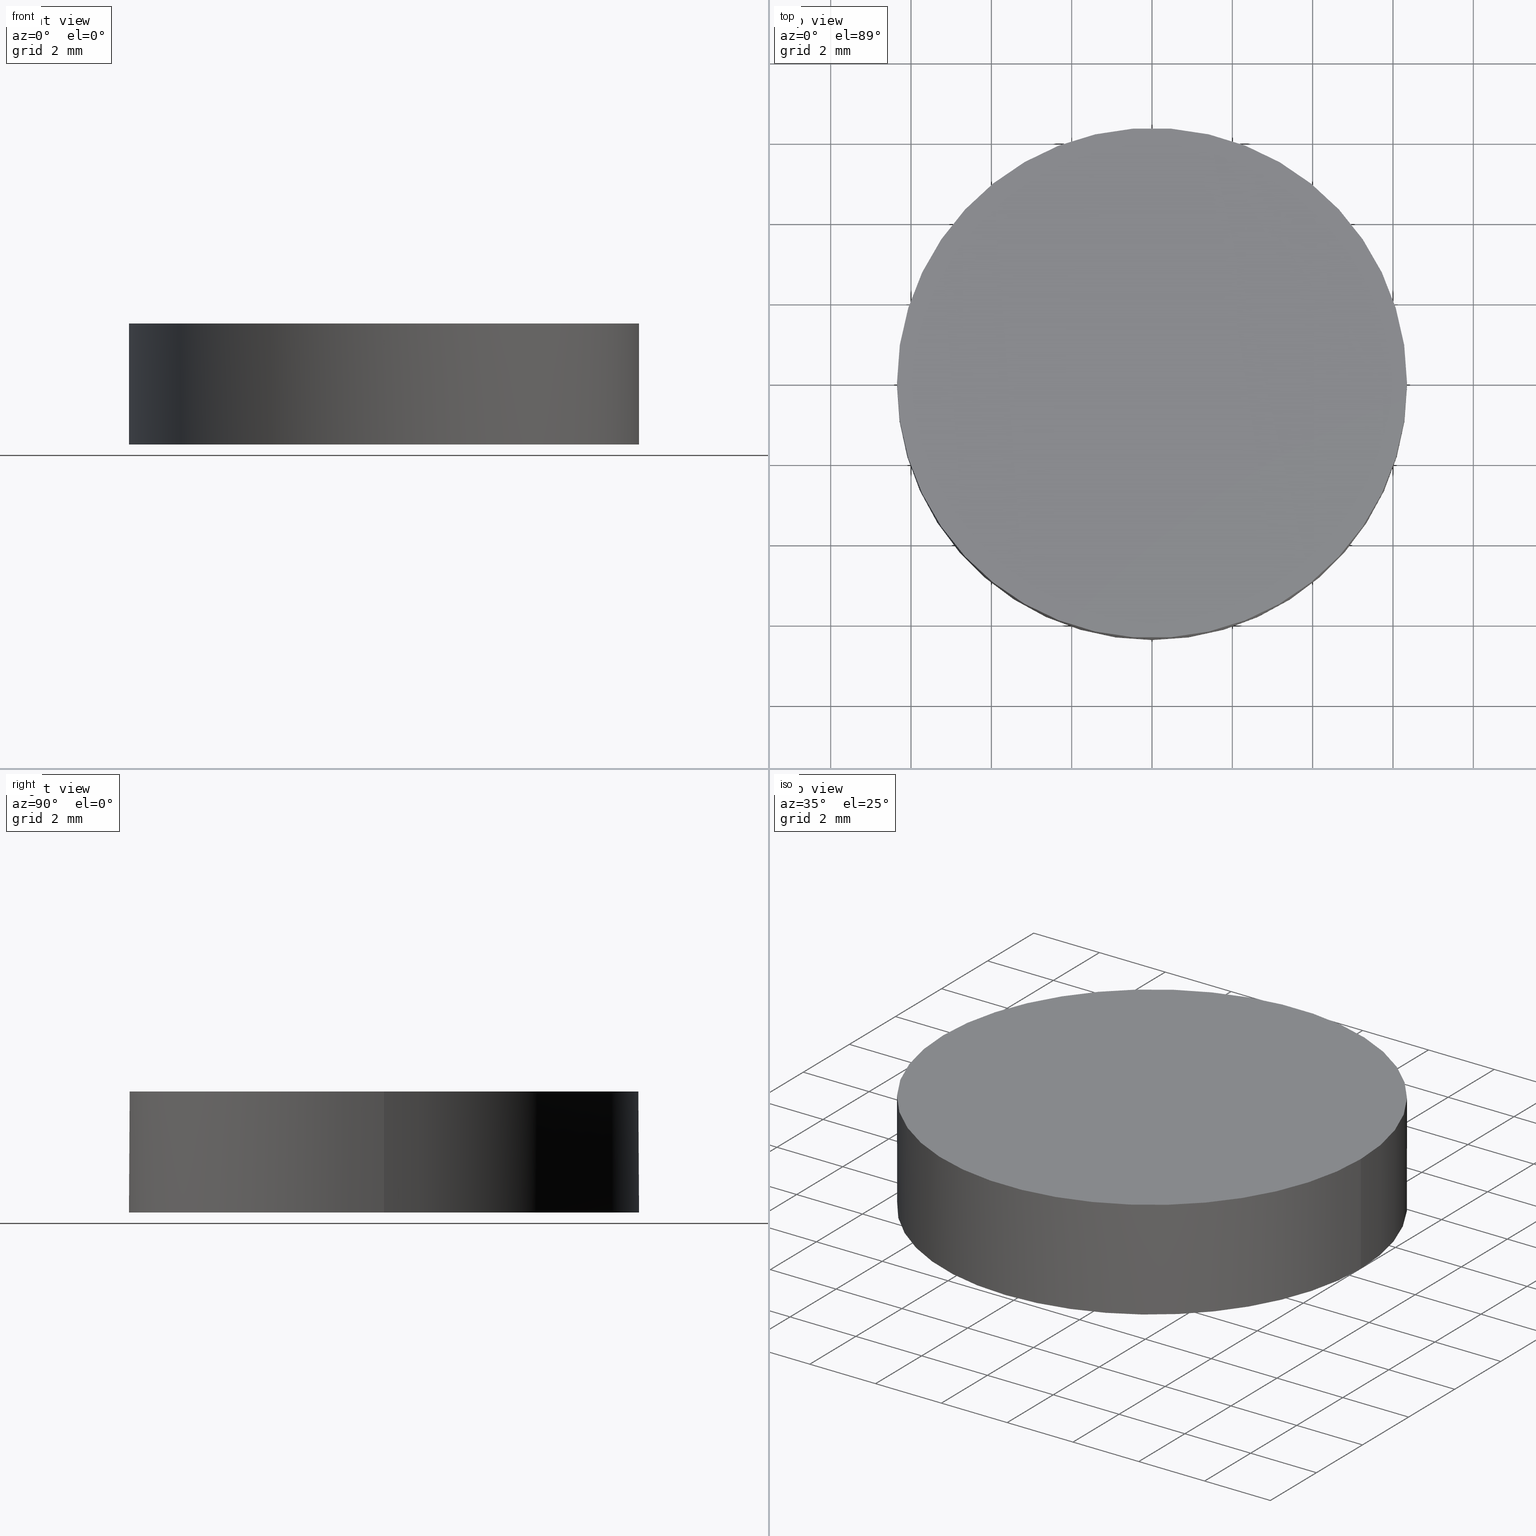
[diagram: canonical four-view strip — front | top / right | iso, engineering-drawing reading convention]
A machine part, canonical four-view strip (front | top / right | iso — engineering-drawing reading convention). The complete STEP part file that produces these views, byte-faithful:
ISO-10303-21;
HEADER;
FILE_DESCRIPTION (( 'STEP AP203' ),
    '1' );
FILE_NAME ('112-1123E UVFS pl-cv 12.7 F-200.STEP',
    '2019-01-16T13:51:20',
    ( '' ),
    ( '' ),
    'SwSTEP 2.0',
    'SolidWorks 2017',
    '' );
FILE_SCHEMA (( 'CONFIG_CONTROL_DESIGN' ));
ENDSEC;

DATA;
#1 = APPROVAL_DATE_TIME ( #61, #102 ) ;
#2 = CARTESIAN_POINT ( 'NONE',  ( 2.126488737841746500, -6.426084769830244300, -0.2171079789074070200 ) ) ;
#3 = DIRECTION ( 'NONE',  ( -0.0000000000000000000, -0.0000000000000000000, -1.000000000000000000 ) ) ;
#4 = DATE_AND_TIME ( #39, #56 ) ;
#5 = FACE_OUTER_BOUND ( 'NONE', #226, .T. ) ;
#6 = MECHANICAL_CONTEXT ( 'NONE', #26, 'mechanical' ) ;
#7 = AXIS2_PLACEMENT_3D ( 'NONE', #230, #30, #153 ) ;
#8 = PERSON_AND_ORGANIZATION_ROLE ( 'creator' ) ;
#9 = AXIS2_PLACEMENT_3D ( 'NONE', #12, #66, #67 ) ;
#10 = PERSON_AND_ORGANIZATION ( #115, #116 ) ;
#11 = CC_DESIGN_APPROVAL ( #196, ( #167 ) ) ;
#12 = CARTESIAN_POINT ( 'NONE',  ( 2.498001805406600200E-016, 1.221245327087670000E-015, 2.799999999999999800 ) ) ;
#13 = PERSON_AND_ORGANIZATION ( #115, #116 ) ;
#14 = ORIENTED_EDGE ( 'NONE', *, *, #27, .F. ) ;
#15 = EDGE_CURVE ( 'NONE', #176, #182, #97, .T. ) ;
#16 = EDGE_LOOP ( 'NONE', ( #212, #218, #48, #180, #109 ) ) ;
#17 = ADVANCED_FACE ( 'NONE', ( #128 ), #71, .T. ) ;
#18 = CC_DESIGN_PERSON_AND_ORGANIZATION_ASSIGNMENT ( #10, #183, ( #204 ) ) ;
#19 = CARTESIAN_POINT ( 'NONE',  ( -5.984795992119984500E-014, -6.426084769830243500, -0.2171079789074099900 ) ) ;
#20 = APPROVAL_STATUS ( 'not_yet_approved' ) ;
#21 = CC_DESIGN_DATE_AND_TIME_ASSIGNMENT ( #95, #146, ( #84 ) ) ;
#22 = DATE_TIME_ROLE ( 'creation_date' ) ;
#23 = LINE ( 'NONE', #154, #81 ) ;
#24 = SECURITY_CLASSIFICATION_LEVEL ( 'unclassified' ) ;
#25 = EDGE_CURVE ( 'NONE', #145, #36, #136, .T. ) ;
#26 = APPLICATION_CONTEXT ( 'configuration controlled 3d designs of mechanical parts and assemblies' ) ;
#27 = EDGE_CURVE ( 'NONE', #162, #176, #229, .T. ) ;
#28 = ADVANCED_FACE ( 'NONE', ( #73 ), #171, .T. ) ;
#29 = DIRECTION ( 'NONE',  ( 1.000000000000000000, 0.0000000000000000000, 0.0000000000000000000 ) ) ;
#30 = DIRECTION ( 'NONE',  ( 0.0000000000000000000, 0.0000000000000000000, 1.000000000000000000 ) ) ;
#31 = ORIENTED_EDGE ( 'NONE', *, *, #25, .T. ) ;
#32 = CARTESIAN_POINT ( 'NONE',  ( 2.498001805406600200E-016, 1.221245327087670000E-015, -0.2119915998235260000 ) ) ;
#33 = EDGE_CURVE ( 'NONE', #162, #145, #112, .T. ) ;
#34 = DIRECTION ( 'NONE',  ( 0.0000000000000000000, 0.0000000000000000000, 1.000000000000000000 ) ) ;
#35 = CARTESIAN_POINT ( 'NONE',  ( -3.640864328147872700E-014, 6.350000000000079600, -0.2119915998235293900 ) ) ;
#36 = VERTEX_POINT ( 'NONE', #69 ) ;
#37 = CARTESIAN_POINT ( 'NONE',  ( 4.264740826300936800, 2.145289535013028500, 0.0008841159551957629700 ) ) ;
#38 = AXIS2_PLACEMENT_3D ( 'NONE', #76, #203, #114 ) ;
#39 = CALENDAR_DATE ( 2019, 16, 1 ) ;
#40 = CARTESIAN_POINT ( 'NONE',  ( 6.349999999999999600, 1.221245327087670000E-015, 2.799999999999999800 ) ) ;
#41 = CARTESIAN_POINT ( 'NONE',  ( 2.498001805406600200E-016, 1.221245327087670000E-015, -0.2119915998235260000 ) ) ;
#42 =( NAMED_UNIT ( * ) PLANE_ANGLE_UNIT ( ) SI_UNIT ( $, .RADIAN. ) );
#43 = CIRCLE ( 'NONE', #92, 6.349999999999999600 ) ;
#44 = PERSON_AND_ORGANIZATION_ROLE ( 'design_supplier' ) ;
#45 =( LENGTH_UNIT ( ) NAMED_UNIT ( * ) SI_UNIT ( .MILLI., .METRE. ) );
#46 = DIRECTION ( 'NONE',  ( 0.0000000000000000000, 0.0000000000000000000, 1.000000000000000000 ) ) ;
#47 = CALENDAR_DATE ( 2019, 16, 1 ) ;
#48 = ORIENTED_EDGE ( 'NONE', *, *, #165, .T. ) ;
#49 = CC_DESIGN_PERSON_AND_ORGANIZATION_ASSIGNMENT ( #93, #8, ( #167 ) ) ;
#50 = PERSON_AND_ORGANIZATION ( #115, #116 ) ;
#51 = CARTESIAN_POINT ( 'NONE',  ( -4.251779203210003500, 6.426084769830233700, -0.2884857764570014600 ) ) ;
#52 = MANIFOLD_SOLID_BREP ( 'Imported1', #193 ) ;
#53 = ORIENTED_EDGE ( 'NONE', *, *, #201, .F. ) ;
#54 = AXIS2_PLACEMENT_3D ( 'NONE', #41, #113, #184 ) ;
#55 = CARTESIAN_POINT ( 'NONE',  ( -5.984795992119983200E-014, -2.145289535013039200, 0.07247950996610000300 ) ) ;
#56 = LOCAL_TIME ( 15, 51, 20.00000000000000000, #225 ) ;
#57 = CARTESIAN_POINT ( 'NONE',  ( 4.251779203209928900, 6.426084769830233700, -0.2884857764570011300 ) ) ;
#58 = LOCAL_TIME ( 15, 51, 20.00000000000000000, #222 ) ;
#59 =( BOUNDED_SURFACE ( )  B_SPLINE_SURFACE ( 3, 3, ( 
 ( #210, #111, #57, #232 ),
 ( #72, #122, #37, #173 ),
 ( #87, #192, #124, #142 ),
 ( #123, #2, #157, #139 ) ),
 .UNSPECIFIED., .F., .F., .F. ) 
 B_SPLINE_SURFACE_WITH_KNOTS ( ( 4, 4 ),
 ( 4, 4 ),
 ( 0.0000000000000000000, 1.000000000000000000 ),
 ( 0.0000000000000000000, 1.000000000000000000 ),
 .UNSPECIFIED. ) 
 GEOMETRIC_REPRESENTATION_ITEM ( )  RATIONAL_B_SPLINE_SURFACE ( (
 ( 1.000000000000000000, 0.9996243345654658400, 0.9996243345654658400, 1.000000000000000000),
 ( 0.9984797956873757700, 0.9981047013410553300, 0.9981047013410553300, 0.9984797956873757700),
 ( 0.9984797956873757700, 0.9981047013410553300, 0.9981047013410553300, 0.9984797956873757700),
 ( 1.000000000000000000, 0.9996243345654658400, 0.9996243345654658400, 1.000000000000000000) ) ) 
 REPRESENTATION_ITEM ( '' )  SURFACE ( )  );
#60 = CC_DESIGN_PERSON_AND_ORGANIZATION_ASSIGNMENT ( #50, #44, ( #167 ) ) ;
#61 = DATE_AND_TIME ( #185, #140 ) ;
#62 =( NAMED_UNIT ( * ) SI_UNIT ( $, .STERADIAN. ) SOLID_ANGLE_UNIT ( ) );
#63 = CALENDAR_DATE ( 2019, 16, 1 ) ;
#64 = ORIENTED_EDGE ( 'NONE', *, *, #33, .F. ) ;
#65 = AXIS2_PLACEMENT_3D ( 'NONE', #209, #137, #29 ) ;
#66 = DIRECTION ( 'NONE',  ( -0.0000000000000000000, -0.0000000000000000000, -1.000000000000000000 ) ) ;
#67 = DIRECTION ( 'NONE',  ( 1.000000000000000000, 0.0000000000000000000, 0.0000000000000000000 ) ) ;
#68 = ORIENTED_EDGE ( 'NONE', *, *, #25, .F. ) ;
#69 = CARTESIAN_POINT ( 'NONE',  ( -3.640864328147872700E-014, -6.350000000000084900, -0.2119915998235293900 ) ) ;
#70 = APPROVAL_PERSON_ORGANIZATION ( #187, #196, #163 ) ;
#71 = CYLINDRICAL_SURFACE ( 'NONE', #65, 6.349999999999999600 ) ;
#72 = CARTESIAN_POINT ( 'NONE',  ( -3.649639163004573800E-014, 2.145289535013029000, 0.07247950996610258400 ) ) ;
#73 = FACE_OUTER_BOUND ( 'NONE', #78, .T. ) ;
#74 = AXIS2_PLACEMENT_3D ( 'NONE', #168, #207, #121 ) ;
#75 = CARTESIAN_POINT ( 'NONE',  ( -6.392905855018496700, 2.145289535013029000, -0.1422259843222124800 ) ) ;
#76 = CARTESIAN_POINT ( 'NONE',  ( 0.0000000000000000000, 0.0000000000000000000, 0.0000000000000000000 ) ) ;
#77 = DIRECTION ( 'NONE',  ( 1.000000000000000000, 0.0000000000000000000, 0.0000000000000000000 ) ) ;
#78 = EDGE_LOOP ( 'NONE', ( #216, #83 ) ) ;
#79 = APPROVAL_STATUS ( 'not_yet_approved' ) ;
#80 = APPROVAL_PERSON_ORGANIZATION ( #90, #102, #99 ) ;
#81 = VECTOR ( 'NONE', #198, 1000.000000000000000 ) ;
#82 = PRODUCT_DEFINITION_SHAPE ( 'NONE', 'NONE',  #174 ) ;
#83 = ORIENTED_EDGE ( 'NONE', *, *, #228, .F. ) ;
#84 = SECURITY_CLASSIFICATION ( '', '', #24 ) ;
#85 = CALENDAR_DATE ( 2019, 16, 1 ) ;
#86 = CYLINDRICAL_SURFACE ( 'NONE', #224, 6.349999999999999600 ) ;
#87 = CARTESIAN_POINT ( 'NONE',  ( -3.649639163004573800E-014, -2.145289535013039200, 0.07247950996610241800 ) ) ;
#88 = PRODUCT_RELATED_PRODUCT_CATEGORY ( 'detail', '', ( #204 ) ) ;
#89 = ADVANCED_FACE ( 'NONE', ( #5 ), #126, .F. ) ;
#90 = PERSON_AND_ORGANIZATION ( #115, #116 ) ;
#91 = FACE_OUTER_BOUND ( 'NONE', #166, .T. ) ;
#92 = AXIS2_PLACEMENT_3D ( 'NONE', #98, #3, #219 ) ;
#93 = PERSON_AND_ORGANIZATION ( #115, #116 ) ;
#94 = CARTESIAN_POINT ( 'NONE',  ( -2.132971375864607400, 2.145289535013028500, 0.07247950996609892100 ) ) ;
#95 = DATE_AND_TIME ( #85, #202 ) ;
#96 = PERSON_AND_ORGANIZATION_ROLE ( 'classification_officer' ) ;
#97 = CIRCLE ( 'NONE', #9, 6.349999999999999600 ) ;
#98 = CARTESIAN_POINT ( 'NONE',  ( 2.498001805406600200E-016, 1.221245327087670000E-015, 2.799999999999999800 ) ) ;
#99 = APPROVAL_ROLE ( '' ) ;
#100 = CC_DESIGN_PERSON_AND_ORGANIZATION_ASSIGNMENT ( #206, #96, ( #84 ) ) ;
#101 = ORIENTED_EDGE ( 'NONE', *, *, #33, .T. ) ;
#102 = APPROVAL ( #20, 'UNSPECIFIED' ) ;
#103 = ADVANCED_FACE ( 'NONE', ( #130 ), #86, .T. ) ;
#104 = UNCERTAINTY_MEASURE_WITH_UNIT (LENGTH_MEASURE( 1.000000000000000100E-005 ), #45, 'distance_accuracy_value', 'NONE');
#105 = CARTESIAN_POINT ( 'NONE',  ( -6.373476201606024500, 6.426084769830232800, -0.4311609290421902800 ) ) ;
#106 = CARTESIAN_POINT ( 'NONE',  ( -5.984795992119984500E-014, 6.426084769830232800, -0.2171079789074099900 ) ) ;
#107 = CARTESIAN_POINT ( 'NONE',  ( -2.126488737841831300, 6.426084769830233700, -0.2171079789074112100 ) ) ;
#108 = APPROVAL_DATE_TIME ( #170, #186 ) ;
#109 = ORIENTED_EDGE ( 'NONE', *, *, #15, .T. ) ;
#110 = CARTESIAN_POINT ( 'NONE',  ( -4.264740826301011400, 2.145289535013028500, 0.0008841159551954106000 ) ) ;
#111 = CARTESIAN_POINT ( 'NONE',  ( 2.126488737841746500, 6.426084769830233700, -0.2171079789074070200 ) ) ;
#112 = CIRCLE ( 'NONE', #7, 6.349999999999999600 ) ;
#113 = DIRECTION ( 'NONE',  ( 0.0000000000000000000, 0.0000000000000000000, 1.000000000000000000 ) ) ;
#114 = DIRECTION ( 'NONE',  ( 1.000000000000000000, 0.0000000000000000000, 0.0000000000000000000 ) ) ;
#115 = PERSON ( 'UNSPECIFIED', 'UNSPECIFIED', 'UNSPECIFIED', ('UNSPECIFIED'), ('UNSPECIFIED'), ('UNSPECIFIED') ) ;
#116 = ORGANIZATION ( 'UNSPECIFIED', 'UNSPECIFIED', '' ) ;
#117 = CIRCLE ( 'NONE', #118, 6.349999999999999600 ) ;
#118 = AXIS2_PLACEMENT_3D ( 'NONE', #32, #158, #177 ) ;
#119 = ORIENTED_EDGE ( 'NONE', *, *, #165, .F. ) ;
#120 = DIRECTION ( 'NONE',  ( 0.0000000000000000000, 0.0000000000000000000, 1.000000000000000000 ) ) ;
#121 = DIRECTION ( 'NONE',  ( 0.0000000000000000000, 1.000000000000000000, -2.915195422290611700E-016 ) ) ;
#122 = CARTESIAN_POINT ( 'NONE',  ( 2.132971375864522600, 2.145289535013028500, 0.07247950996610323700 ) ) ;
#123 = CARTESIAN_POINT ( 'NONE',  ( -3.640706507617139100E-014, -6.426084769830243500, -0.2171079789074076300 ) ) ;
#124 = CARTESIAN_POINT ( 'NONE',  ( 4.264740826300936800, -2.145289535013038800, 0.0008841159551956004500 ) ) ;
#125 = EDGE_CURVE ( 'NONE', #200, #182, #23, .T. ) ;
#126 =( BOUNDED_SURFACE ( )  B_SPLINE_SURFACE ( 3, 3, ( 
 ( #105, #51, #107, #106 ),
 ( #75, #110, #94, #231 ),
 ( #156, #141, #213, #55 ),
 ( #181, #175, #194, #19 ) ),
 .UNSPECIFIED., .F., .F., .F. ) 
 B_SPLINE_SURFACE_WITH_KNOTS ( ( 4, 4 ),
 ( 4, 4 ),
 ( 0.0000000000000000000, 1.000000000000000000 ),
 ( 0.0000000000000000000, 1.000000000000000000 ),
 .UNSPECIFIED. ) 
 GEOMETRIC_REPRESENTATION_ITEM ( )  RATIONAL_B_SPLINE_SURFACE ( (
 ( 1.000000000000000000, 0.9996243345654658400, 0.9996243345654658400, 1.000000000000000000),
 ( 0.9984797956873757700, 0.9981047013410553300, 0.9981047013410553300, 0.9984797956873757700),
 ( 0.9984797956873757700, 0.9981047013410553300, 0.9981047013410553300, 0.9984797956873757700),
 ( 1.000000000000000000, 0.9996243345654658400, 0.9996243345654658400, 1.000000000000000000) ) ) 
 REPRESENTATION_ITEM ( '' )  SURFACE ( )  );
#127 = ADVANCED_FACE ( 'NONE', ( #91 ), #59, .F. ) ;
#128 = FACE_OUTER_BOUND ( 'NONE', #16, .T. ) ;
#129 = APPROVAL_ROLE ( '' ) ;
#130 = FACE_OUTER_BOUND ( 'NONE', #155, .T. ) ;
#131 = APPLICATION_PROTOCOL_DEFINITION ( 'international standard', 'config_control_design', 1994, #26 ) ;
#132 = CC_DESIGN_SECURITY_CLASSIFICATION ( #84, ( #167 ) ) ;
#133 = COORDINATED_UNIVERSAL_TIME_OFFSET ( 2, 0, .AHEAD. ) ;
#134 = VECTOR ( 'NONE', #227, 1000.000000000000000 ) ;
#135 = COORDINATED_UNIVERSAL_TIME_OFFSET ( 2, 0, .AHEAD. ) ;
#136 = CIRCLE ( 'NONE', #74, 95.20999999999999400 ) ;
#137 = DIRECTION ( 'NONE',  ( 0.0000000000000000000, 0.0000000000000000000, 1.000000000000000000 ) ) ;
#138 = APPROVAL_DATE_TIME ( #179, #196 ) ;
#139 = CARTESIAN_POINT ( 'NONE',  ( 6.373476201605961400, -6.426084769830243500, -0.4311609290421896100 ) ) ;
#140 = LOCAL_TIME ( 15, 51, 20.00000000000000000, #135 ) ;
#141 = CARTESIAN_POINT ( 'NONE',  ( -4.264740826301011400, -2.145289535013038800, 0.0008841159551952479700 ) ) ;
#142 = CARTESIAN_POINT ( 'NONE',  ( 6.392905855018431000, -2.145289535013039200, -0.1422259843222119200 ) ) ;
#143 = CARTESIAN_POINT ( 'NONE',  ( 2.498001805406600200E-016, 1.221245327087670000E-015, -0.2119915998235260000 ) ) ;
#144 = PERSON_AND_ORGANIZATION_ROLE ( 'creator' ) ;
#145 = VERTEX_POINT ( 'NONE', #35 ) ;
#146 = DATE_TIME_ROLE ( 'classification_date' ) ;
#147 = APPLICATION_CONTEXT ( 'configuration controlled 3d designs of mechanical parts and assemblies' ) ;
#148 = CC_DESIGN_DATE_AND_TIME_ASSIGNMENT ( #4, #22, ( #174 ) ) ;
#149 = COORDINATED_UNIVERSAL_TIME_OFFSET ( 2, 0, .AHEAD. ) ;
#150 = ORIENTED_EDGE ( 'NONE', *, *, #214, .F. ) ;
#151 = CARTESIAN_POINT ( 'NONE',  ( 6.349999999999999600, 1.221245327087670000E-015, -0.2119915998235260000 ) ) ;
#152 = PERSON_AND_ORGANIZATION ( #115, #116 ) ;
#153 = DIRECTION ( 'NONE',  ( 1.000000000000000000, 0.0000000000000000000, 0.0000000000000000000 ) ) ;
#154 = CARTESIAN_POINT ( 'NONE',  ( -6.349999999999999600, 1.998896044546239400E-015, -0.2119915998235260000 ) ) ;
#155 = EDGE_LOOP ( 'NONE', ( #101, #223, #161, #220, #14 ) ) ;
#156 = CARTESIAN_POINT ( 'NONE',  ( -6.392905855018496700, -2.145289535013039200, -0.1422259843222126500 ) ) ;
#157 = CARTESIAN_POINT ( 'NONE',  ( 4.251779203209928900, -6.426084769830244300, -0.2884857764570011300 ) ) ;
#158 = DIRECTION ( 'NONE',  ( 0.0000000000000000000, 0.0000000000000000000, 1.000000000000000000 ) ) ;
#159 = CC_DESIGN_APPROVAL ( #102, ( #174 ) ) ;
#160 = SHAPE_DEFINITION_REPRESENTATION ( #82, #169 ) ;
#161 = ORIENTED_EDGE ( 'NONE', *, *, #125, .T. ) ;
#162 = VERTEX_POINT ( 'NONE', #215 ) ;
#163 = APPROVAL_ROLE ( '' ) ;
#164 = CARTESIAN_POINT ( 'NONE',  ( 2.498001805406600200E-016, 1.221245327087670000E-015, -0.2119915998235260000 ) ) ;
#165 = EDGE_CURVE ( 'NONE', #36, #162, #117, .T. ) ;
#166 = EDGE_LOOP ( 'NONE', ( #68, #64, #119 ) ) ;
#167 = PRODUCT_DEFINITION_FORMATION_WITH_SPECIFIED_SOURCE ( 'ANY', '', #204, .NOT_KNOWN. ) ;
#168 = CARTESIAN_POINT ( 'NONE',  ( -7.105427357601000300E-015, -7.105427357601000300E-015, -95.20999999999999400 ) ) ;
#169 = ADVANCED_BREP_SHAPE_REPRESENTATION ( '112-1123E UVFS pl-cv 12.7 F-200', ( #52, #38 ), #178 ) ;
#170 = DATE_AND_TIME ( #63, #58 ) ;
#171 = PLANE ( 'NONE',  #235 ) ;
#172 = CARTESIAN_POINT ( 'NONE',  ( -6.349999999999999600, 1.998896044546239400E-015, 2.799999999999999800 ) ) ;
#173 = CARTESIAN_POINT ( 'NONE',  ( 6.392905855018431000, 2.145289535013029000, -0.1422259843222117600 ) ) ;
#174 = PRODUCT_DEFINITION ( 'UNKNOWN', '', #167, #190 ) ;
#175 = CARTESIAN_POINT ( 'NONE',  ( -4.251779203210003500, -6.426084769830244300, -0.2884857764570014600 ) ) ;
#176 = VERTEX_POINT ( 'NONE', #40 ) ;
#177 = DIRECTION ( 'NONE',  ( 1.000000000000000000, 0.0000000000000000000, 0.0000000000000000000 ) ) ;
#178 =( GEOMETRIC_REPRESENTATION_CONTEXT ( 3 ) GLOBAL_UNCERTAINTY_ASSIGNED_CONTEXT ( ( #104 ) ) GLOBAL_UNIT_ASSIGNED_CONTEXT ( ( #45, #42, #62 ) ) REPRESENTATION_CONTEXT ( 'NONE', 'WORKASPACE' ) );
#179 = DATE_AND_TIME ( #47, #211 ) ;
#180 = ORIENTED_EDGE ( 'NONE', *, *, #27, .T. ) ;
#181 = CARTESIAN_POINT ( 'NONE',  ( -6.373476201606024500, -6.426084769830243500, -0.4311609290421902800 ) ) ;
#182 = VERTEX_POINT ( 'NONE', #172 ) ;
#183 = PERSON_AND_ORGANIZATION_ROLE ( 'design_owner' ) ;
#184 = DIRECTION ( 'NONE',  ( 1.000000000000000000, 0.0000000000000000000, 0.0000000000000000000 ) ) ;
#185 = CALENDAR_DATE ( 2019, 16, 1 ) ;
#186 = APPROVAL ( #79, 'UNSPECIFIED' ) ;
#187 = PERSON_AND_ORGANIZATION ( #115, #116 ) ;
#188 = CC_DESIGN_PERSON_AND_ORGANIZATION_ASSIGNMENT ( #13, #144, ( #174 ) ) ;
#189 = CIRCLE ( 'NONE', #54, 6.349999999999999600 ) ;
#190 = DESIGN_CONTEXT ( 'detailed design', #147, 'design' ) ;
#191 = CARTESIAN_POINT ( 'NONE',  ( 0.0000000000000000000, 13.15799999999999900, 2.799999999999999800 ) ) ;
#192 = CARTESIAN_POINT ( 'NONE',  ( 2.132971375864522600, -2.145289535013038800, 0.07247950996610307000 ) ) ;
#193 = CLOSED_SHELL ( 'NONE', ( #89, #103, #127, #17, #28 ) ) ;
#194 = CARTESIAN_POINT ( 'NONE',  ( -2.126488737841831300, -6.426084769830244300, -0.2171079789074112100 ) ) ;
#195 = CARTESIAN_POINT ( 'NONE',  ( -6.349999999999999600, 1.998896044546239400E-015, -0.2119915998235260000 ) ) ;
#196 = APPROVAL ( #199, 'UNSPECIFIED' ) ;
#197 = APPROVAL_PERSON_ORGANIZATION ( #152, #186, #129 ) ;
#198 = DIRECTION ( 'NONE',  ( 0.0000000000000000000, 0.0000000000000000000, 1.000000000000000000 ) ) ;
#199 = APPROVAL_STATUS ( 'not_yet_approved' ) ;
#200 = VERTEX_POINT ( 'NONE', #195 ) ;
#201 = EDGE_CURVE ( 'NONE', #200, #36, #189, .T. ) ;
#202 = LOCAL_TIME ( 15, 51, 20.00000000000000000, #133 ) ;
#203 = DIRECTION ( 'NONE',  ( 0.0000000000000000000, 0.0000000000000000000, 1.000000000000000000 ) ) ;
#204 = PRODUCT ( '112-1123E UVFS pl-cv 12.7 F-200', '112-1123E UVFS pl-cv 12.7 F-200', '', ( #6 ) ) ;
#205 = AXIS2_PLACEMENT_3D ( 'NONE', #164, #46, #77 ) ;
#206 = PERSON_AND_ORGANIZATION ( #115, #116 ) ;
#207 = DIRECTION ( 'NONE',  ( 1.000000000000000000, 9.414397848674539600E-032, 3.084613711104210100E-016 ) ) ;
#208 = DIRECTION ( 'NONE',  ( 1.000000000000000000, 0.0000000000000000000, -0.0000000000000000000 ) ) ;
#209 = CARTESIAN_POINT ( 'NONE',  ( 2.498001805406600200E-016, 1.221245327087670000E-015, -0.2119915998235260000 ) ) ;
#210 = CARTESIAN_POINT ( 'NONE',  ( -3.640706507617139100E-014, 6.426084769830232800, -0.2171079789074076300 ) ) ;
#211 = LOCAL_TIME ( 15, 51, 20.00000000000000000, #149 ) ;
#212 = ORIENTED_EDGE ( 'NONE', *, *, #125, .F. ) ;
#213 = CARTESIAN_POINT ( 'NONE',  ( -2.132971375864607400, -2.145289535013038800, 0.07247950996609882300 ) ) ;
#214 = EDGE_CURVE ( 'NONE', #145, #200, #234, .T. ) ;
#215 = CARTESIAN_POINT ( 'NONE',  ( 6.349999999999999600, 1.221245327087670000E-015, -0.2119915998235260000 ) ) ;
#216 = ORIENTED_EDGE ( 'NONE', *, *, #15, .F. ) ;
#217 = CC_DESIGN_APPROVAL ( #186, ( #84 ) ) ;
#218 = ORIENTED_EDGE ( 'NONE', *, *, #201, .T. ) ;
#219 = DIRECTION ( 'NONE',  ( 1.000000000000000000, 0.0000000000000000000, 0.0000000000000000000 ) ) ;
#220 = ORIENTED_EDGE ( 'NONE', *, *, #228, .T. ) ;
#221 = APPLICATION_PROTOCOL_DEFINITION ( 'international standard', 'config_control_design', 1994, #147 ) ;
#222 = COORDINATED_UNIVERSAL_TIME_OFFSET ( 2, 0, .AHEAD. ) ;
#223 = ORIENTED_EDGE ( 'NONE', *, *, #214, .T. ) ;
#224 = AXIS2_PLACEMENT_3D ( 'NONE', #143, #34, #233 ) ;
#225 = COORDINATED_UNIVERSAL_TIME_OFFSET ( 2, 0, .AHEAD. ) ;
#226 = EDGE_LOOP ( 'NONE', ( #150, #31, #53 ) ) ;
#227 = DIRECTION ( 'NONE',  ( 0.0000000000000000000, 0.0000000000000000000, 1.000000000000000000 ) ) ;
#228 = EDGE_CURVE ( 'NONE', #182, #176, #43, .T. ) ;
#229 = LINE ( 'NONE', #151, #134 ) ;
#230 = CARTESIAN_POINT ( 'NONE',  ( 2.498001805406600200E-016, 1.221245327087670000E-015, -0.2119915998235260000 ) ) ;
#231 = CARTESIAN_POINT ( 'NONE',  ( -5.984795992119983200E-014, 2.145289535013029000, 0.07247950996610011400 ) ) ;
#232 = CARTESIAN_POINT ( 'NONE',  ( 6.373476201605961400, 6.426084769830232800, -0.4311609290421896100 ) ) ;
#233 = DIRECTION ( 'NONE',  ( 1.000000000000000000, 0.0000000000000000000, 0.0000000000000000000 ) ) ;
#234 = CIRCLE ( 'NONE', #205, 6.349999999999999600 ) ;
#235 = AXIS2_PLACEMENT_3D ( 'NONE', #191, #120, #208 ) ;
ENDSEC;
END-ISO-10303-21;
